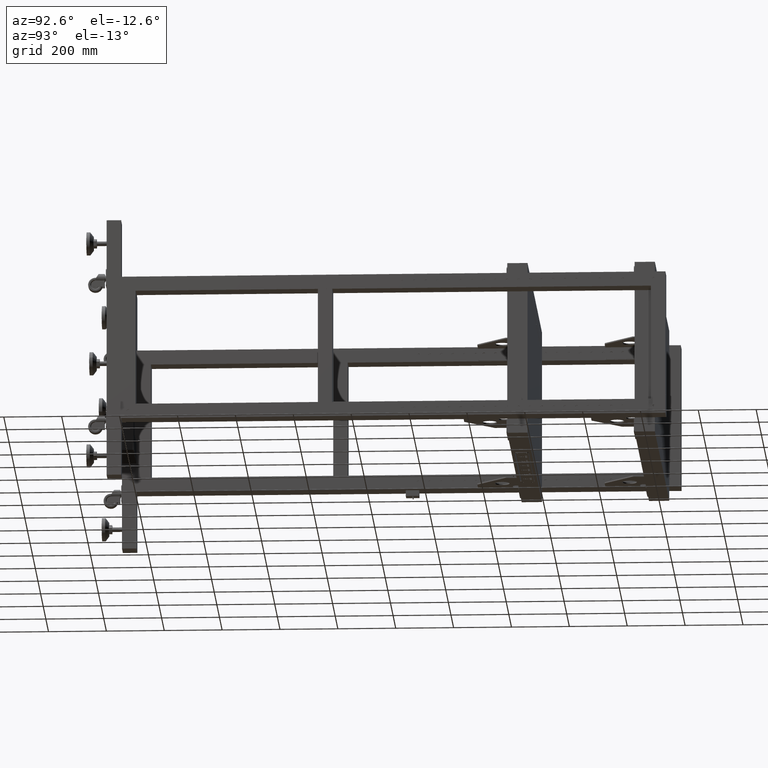
[diagram: clean part render]
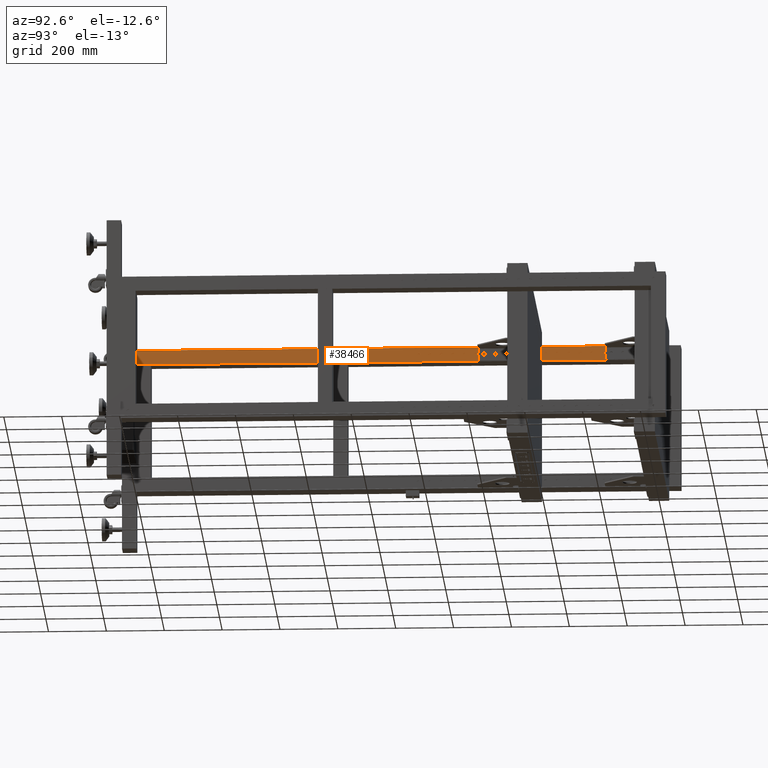
[diagram: same view with one face highlighted and labeled with its STEP entity id]
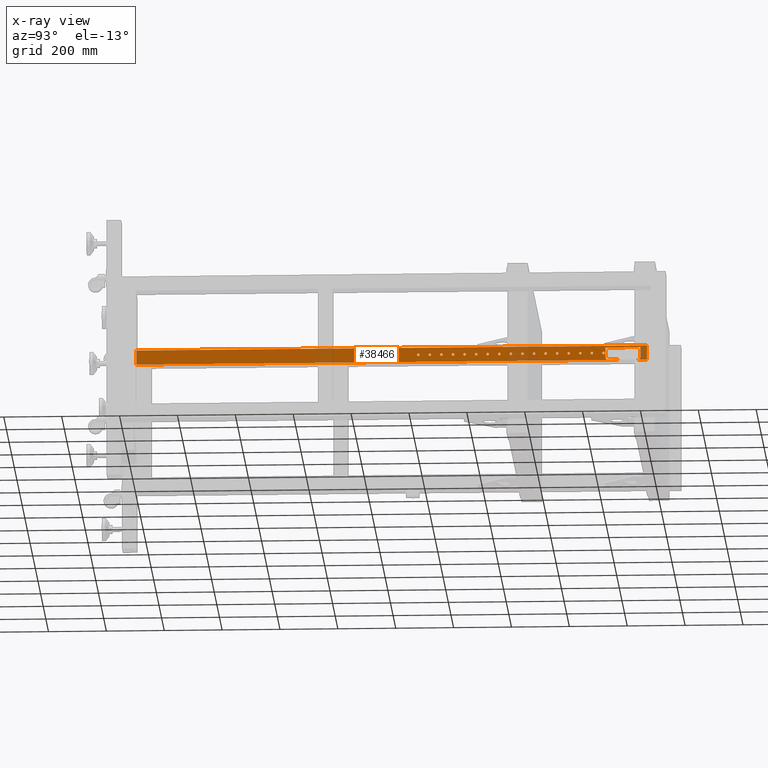
[diagram: x-ray of the same camera — body ghosted, the highlighted face saturated]
A machine part, auxiliary view. The second image highlights one B-rep face of the part: STEP entity #38466.
The next image is the same camera in x-ray: the body ghosted, the highlighted face saturated — about 11% of this face is hidden behind the body in this view.
In plain terms, the highlighted planar face has unit normal (-1, 0, 0).
Its self-contained STEP definition (entity closure, byte-faithful):
#29 = CARTESIAN_POINT ( 'NONE',  ( -1268.172487437185055, 449.4410804020111527, 224.9999999999969020 ) ) ;
#412 = DIRECTION ( 'NONE',  ( -4.498682352102549724E-16, -7.000000000000000150E-15, 1.000000000000000000 ) ) ;
#474 = VERTEX_POINT ( 'NONE', #35393 ) ;
#557 = EDGE_CURVE ( 'NONE', #46273, #58911, #46127, .T. ) ;
#1122 = DIRECTION ( 'NONE',  ( 0.000000000000000000, 1.000000000000000000, 0.000000000000000000 ) ) ;
#1271 = CIRCLE ( 'NONE', #25440, 4.500000000000059508 ) ;
#1441 = CARTESIAN_POINT ( 'NONE',  ( -1268.172487437185055, 289.4410804020110959, 224.9999999999957936 ) ) ;
#1723 = VERTEX_POINT ( 'NONE', #26430 ) ;
#1791 = CIRCLE ( 'NONE', #10579, 4.500000000000059508 ) ;
#1903 = CIRCLE ( 'NONE', #38171, 4.500000000000059508 ) ;
#2025 = LINE ( 'NONE', #49195, #62705 ) ;
#2046 = CARTESIAN_POINT ( 'NONE',  ( -1268.172487437185737, 851.4410804020113801, 200.9999999999986926 ) ) ;
#2087 = VECTOR ( 'NONE', #59550, 1000.000000000000000 ) ;
#2145 = DIRECTION ( 'NONE',  ( 0.000000000000000000, 1.000000000000000000, 0.000000000000000000 ) ) ;
#2530 = DIRECTION ( 'NONE',  ( 1.000000000000000000, 0.000000000000000000, 0.000000000000000000 ) ) ;
#2561 = DIRECTION ( 'NONE',  ( 1.000000000000000000, 0.000000000000000000, 0.000000000000000000 ) ) ;
#2624 = VERTEX_POINT ( 'NONE', #59311 ) ;
#2727 = DIRECTION ( 'NONE',  ( 1.000000000000000000, 0.000000000000000000, 0.000000000000000000 ) ) ;
#3020 = FACE_BOUND ( 'NONE', #5168, .T. ) ;
#3161 = VERTEX_POINT ( 'NONE', #40164 ) ;
#3181 = EDGE_CURVE ( 'NONE', #48906, #7488, #64739, .T. ) ;
#3359 = FACE_BOUND ( 'NONE', #12355, .T. ) ;
#3629 = AXIS2_PLACEMENT_3D ( 'NONE', #42148, #63148, #57986 ) ;
#3705 = DIRECTION ( 'NONE',  ( 1.000000000000000000, 0.000000000000000000, 0.000000000000000000 ) ) ;
#3842 = CARTESIAN_POINT ( 'NONE',  ( -1268.172487437185055, 896.9410804020110390, 243.9899999999990143 ) ) ;
#3983 = CARTESIAN_POINT ( 'NONE',  ( -1268.172487437185055, -844.5589195979888473, 199.9999999999999716 ) ) ;
#4018 = CARTESIAN_POINT ( 'NONE',  ( -1268.172487437185055, 919.4410804020111527, 199.9999999999999716 ) ) ;
#4443 = CIRCLE ( 'NONE', #12138, 4.499999999999948486 ) ;
#4482 = CARTESIAN_POINT ( 'NONE',  ( -1268.172487437185055, 169.4410804020111243, 224.9999999999949409 ) ) ;
#5076 = VERTEX_POINT ( 'NONE', #35598 ) ;
#5168 = EDGE_LOOP ( 'NONE', ( #24730, #62981 ) ) ;
#5228 = EDGE_CURVE ( 'NONE', #54601, #15463, #55320, .T. ) ;
#5247 = DIRECTION ( 'NONE',  ( 1.000000000000000000, 0.000000000000000000, 0.000000000000000000 ) ) ;
#5638 = EDGE_LOOP ( 'NONE', ( #56497, #35612 ) ) ;
#5716 = VERTEX_POINT ( 'NONE', #48889 ) ;
#5869 = DIRECTION ( 'NONE',  ( 0.000000000000000000, 1.000000000000000000, 0.000000000000000000 ) ) ;
#6245 = DIRECTION ( 'NONE',  ( 0.000000000000000000, 1.000000000000000000, 0.000000000000000000 ) ) ;
#6343 = CARTESIAN_POINT ( 'NONE',  ( -1268.172487437185055, 644.9410804020110390, 224.9999999999983231 ) ) ;
#6460 = DIRECTION ( 'NONE',  ( 0.000000000000000000, 1.000000000000000000, 0.000000000000000000 ) ) ;
#6484 = VERTEX_POINT ( 'NONE', #3842 ) ;
#6512 = EDGE_CURVE ( 'NONE', #6484, #15473, #41026, .T. ) ;
#6637 = EDGE_CURVE ( 'NONE', #15463, #54601, #11567, .T. ) ;
#6674 = DIRECTION ( 'NONE',  ( 1.000000000000000000, 0.000000000000000000, 0.000000000000000000 ) ) ;
#6814 = EDGE_CURVE ( 'NONE', #60722, #7488, #49923, .T. ) ;
#6963 = CARTESIAN_POINT ( 'NONE',  ( -1268.172487437185055, 564.9410804020111527, 224.9999999999977547 ) ) ;
#7245 = EDGE_CURVE ( 'NONE', #17857, #14537, #45882, .T. ) ;
#7437 = LINE ( 'NONE', #65273, #21368 ) ;
#7488 = VERTEX_POINT ( 'NONE', #45134 ) ;
#7698 = DIRECTION ( 'NONE',  ( 0.000000000000000000, 1.000000000000000000, 0.000000000000000000 ) ) ;
#7773 = VECTOR ( 'NONE', #61175, 1000.000000000000000 ) ;
#7810 = CARTESIAN_POINT ( 'NONE',  ( -1268.172487437185055, 764.9410804020111527, 224.9999999999991473 ) ) ;
#7952 = AXIS2_PLACEMENT_3D ( 'NONE', #45016, #28829, #49512 ) ;
#8126 = DIRECTION ( 'NONE',  ( 0.000000000000000000, 1.000000000000000000, 0.000000000000000000 ) ) ;
#8182 = FACE_BOUND ( 'NONE', #51613, .T. ) ;
#8520 = FACE_BOUND ( 'NONE', #39785, .T. ) ;
#8637 = CARTESIAN_POINT ( 'NONE',  ( -1268.172487437185055, 404.9410804020111527, 224.9999999999966178 ) ) ;
#8796 = ORIENTED_EDGE ( 'NONE', *, *, #43654, .F. ) ;
#8876 = EDGE_CURVE ( 'NONE', #13182, #46266, #39212, .T. ) ;
#8978 = CARTESIAN_POINT ( 'NONE',  ( -1268.172487437185055, 293.9410804020111527, 224.9999999999957936 ) ) ;
#8995 = EDGE_CURVE ( 'NONE', #3161, #35044, #39187, .T. ) ;
#9128 = DIRECTION ( 'NONE',  ( 0.000000000000000000, 1.000000000000000000, 0.000000000000000000 ) ) ;
#9215 = ORIENTED_EDGE ( 'NONE', *, *, #50017, .T. ) ;
#9364 = AXIS2_PLACEMENT_3D ( 'NONE', #37441, #47095, #53279 ) ;
#9423 = CIRCLE ( 'NONE', #58899, 4.499999999999948486 ) ;
#9612 = VERTEX_POINT ( 'NONE', #53530 ) ;
#10299 = ORIENTED_EDGE ( 'NONE', *, *, #3181, .T. ) ;
#10411 = CIRCLE ( 'NONE', #13702, 4.500000000000003553 ) ;
#10424 = DIRECTION ( 'NONE',  ( 1.000000000000000000, 0.000000000000000000, 0.000000000000000000 ) ) ;
#10579 = AXIS2_PLACEMENT_3D ( 'NONE', #4482, #68162, #52303 ) ;
#10624 = DIRECTION ( 'NONE',  ( 1.000000000000000000, 0.000000000000000000, 0.000000000000000000 ) ) ;
#10630 = VECTOR ( 'NONE', #60250, 1000.000000000000000 ) ;
#10692 = DIRECTION ( 'NONE',  ( 1.000000000000000000, 0.000000000000000000, 0.000000000000000000 ) ) ;
#10730 = EDGE_CURVE ( 'NONE', #53555, #50852, #43581, .T. ) ;
#10927 = EDGE_CURVE ( 'NONE', #14537, #17857, #53495, .T. ) ;
#11567 = CIRCLE ( 'NONE', #47846, 4.499999999999948486 ) ;
#11713 = AXIS2_PLACEMENT_3D ( 'NONE', #41014, #14839, #35832 ) ;
#12138 = AXIS2_PLACEMENT_3D ( 'NONE', #14867, #35862, #36888 ) ;
#12196 = CARTESIAN_POINT ( 'NONE',  ( -1268.172487437185055, 129.4410804020110675, 224.9999999999946851 ) ) ;
#12225 = CIRCLE ( 'NONE', #59531, 4.500000000000059508 ) ;
#12279 = DIRECTION ( 'NONE',  ( 0.000000000000000000, 1.000000000000000000, 0.000000000000000000 ) ) ;
#12355 = EDGE_LOOP ( 'NONE', ( #55398, #40765 ) ) ;
#12412 = ORIENTED_EDGE ( 'NONE', *, *, #53573, .F. ) ;
#12653 = FACE_BOUND ( 'NONE', #51809, .T. ) ;
#12699 = ORIENTED_EDGE ( 'NONE', *, *, #66601, .F. ) ;
#12996 = FACE_BOUND ( 'NONE', #64912, .T. ) ;
#13133 = CARTESIAN_POINT ( 'NONE',  ( -1268.172487437185055, 449.4410804020111527, 224.9999999999969020 ) ) ;
#13182 = VERTEX_POINT ( 'NONE', #18239 ) ;
#13333 = FACE_BOUND ( 'NONE', #41081, .T. ) ;
#13430 = EDGE_LOOP ( 'NONE', ( #19365, #45945 ) ) ;
#13444 = DIRECTION ( 'NONE',  ( 0.000000000000000000, 1.000000000000000000, 0.000000000000000000 ) ) ;
#13683 = CARTESIAN_POINT ( 'NONE',  ( -1268.172487437185055, -844.5589195979888473, 199.9999999999999716 ) ) ;
#13702 = AXIS2_PLACEMENT_3D ( 'NONE', #55299, #56908, #8126 ) ;
#13781 = LINE ( 'NONE', #46157, #47237 ) ;
#13873 = CIRCLE ( 'NONE', #11713, 4.500000000000003553 ) ;
#14110 = VERTEX_POINT ( 'NONE', #31361 ) ;
#14537 = VERTEX_POINT ( 'NONE', #58141 ) ;
#14561 = CARTESIAN_POINT ( 'NONE',  ( -1268.172487437185055, 209.4410804020111527, 224.9999999999952252 ) ) ;
#14839 = DIRECTION ( 'NONE',  ( 1.000000000000000000, 0.000000000000000000, 0.000000000000000000 ) ) ;
#14867 = CARTESIAN_POINT ( 'NONE',  ( -1268.172487437185055, 649.4410804020110390, 224.9999999999983231 ) ) ;
#14882 = CARTESIAN_POINT ( 'NONE',  ( -1268.172487437185055, 484.9410804020110959, 224.9999999999972147 ) ) ;
#14942 = VERTEX_POINT ( 'NONE', #57696 ) ;
#15109 = AXIS2_PLACEMENT_3D ( 'NONE', #62400, #5247, #26224 ) ;
#15251 = CIRCLE ( 'NONE', #33969, 4.500000000000059508 ) ;
#15289 = ORIENTED_EDGE ( 'NONE', *, *, #18565, .F. ) ;
#15392 = EDGE_LOOP ( 'NONE', ( #15289, #65635 ) ) ;
#15463 = VERTEX_POINT ( 'NONE', #33405 ) ;
#15473 = VERTEX_POINT ( 'NONE', #55086 ) ;
#15625 = DIRECTION ( 'NONE',  ( 0.000000000000000000, 1.000000000000000000, 0.000000000000000000 ) ) ;
#15697 = ORIENTED_EDGE ( 'NONE', *, *, #5228, .F. ) ;
#16239 = CIRCLE ( 'NONE', #63526, 4.499999999999948486 ) ;
#17246 = DIRECTION ( 'NONE',  ( 1.000000000000000000, 0.000000000000000000, 0.000000000000000000 ) ) ;
#17790 = CARTESIAN_POINT ( 'NONE',  ( -1268.172487437185055, 613.9410804020111527, 224.9999999999980389 ) ) ;
#17835 = FACE_BOUND ( 'NONE', #24709, .T. ) ;
#17857 = VERTEX_POINT ( 'NONE', #57637 ) ;
#17936 = CARTESIAN_POINT ( 'NONE',  ( -1268.172487437185055, 369.4410804020110959, 224.9999999999963336 ) ) ;
#17939 = AXIS2_PLACEMENT_3D ( 'NONE', #14561, #56563, #30724 ) ;
#18033 = VERTEX_POINT ( 'NONE', #61388 ) ;
#18147 = VERTEX_POINT ( 'NONE', #14882 ) ;
#18213 = CARTESIAN_POINT ( 'NONE',  ( -1268.172487437185055, 729.4410804020110390, 224.9999999999988631 ) ) ;
#18239 = CARTESIAN_POINT ( 'NONE',  ( -1268.172487437185737, 889.9410804020113801, 200.9999999999989484 ) ) ;
#18285 = DIRECTION ( 'NONE',  ( 1.000000000000000000, 0.000000000000000000, 0.000000000000000000 ) ) ;
#18565 = EDGE_CURVE ( 'NONE', #50852, #53555, #39719, .T. ) ;
#18736 = DIRECTION ( 'NONE',  ( 0.000000000000000000, 1.000000000000000000, 0.000000000000000000 ) ) ;
#18858 = PLANE ( 'NONE',  #40930 ) ;
#19365 = ORIENTED_EDGE ( 'NONE', *, *, #22431, .F. ) ;
#20210 = VERTEX_POINT ( 'NONE', #17790 ) ;
#20822 = CARTESIAN_POINT ( 'NONE',  ( -1268.172487437185055, 689.4410804020111527, 224.9999999999985789 ) ) ;
#21067 = VERTEX_POINT ( 'NONE', #56424 ) ;
#21234 = EDGE_CURVE ( 'NONE', #14110, #58265, #27755, .T. ) ;
#21238 = CARTESIAN_POINT ( 'NONE',  ( -1268.172487437185055, 329.4410804020111527, 224.9999999999960778 ) ) ;
#21368 = VECTOR ( 'NONE', #44952, 1000.000000000000000 ) ;
#21391 = CARTESIAN_POINT ( 'NONE',  ( -1268.172487437185055, 453.9410804020110959, 224.9999999999969020 ) ) ;
#22128 = CIRCLE ( 'NONE', #30766, 4.500000000000059508 ) ;
#22254 = AXIS2_PLACEMENT_3D ( 'NONE', #53958, #37116, #6460 ) ;
#22291 = CIRCLE ( 'NONE', #3629, 4.499999999999948486 ) ;
#22313 = ORIENTED_EDGE ( 'NONE', *, *, #6637, .F. ) ;
#22431 = EDGE_CURVE ( 'NONE', #49654, #68010, #16239, .T. ) ;
#22458 = DIRECTION ( 'NONE',  ( 1.000000000000000000, 0.000000000000000000, 0.000000000000000000 ) ) ;
#22865 = CARTESIAN_POINT ( 'NONE',  ( -1268.172487437185055, 284.9410804020111527, 224.9999999999957936 ) ) ;
#22902 = ORIENTED_EDGE ( 'NONE', *, *, #6814, .F. ) ;
#23580 = CARTESIAN_POINT ( 'NONE',  ( -1268.172487437185055, 769.4410804020110390, 224.9999999999991473 ) ) ;
#23650 = CIRCLE ( 'NONE', #37971, 4.499999999999948486 ) ;
#23703 = EDGE_CURVE ( 'NONE', #14942, #36104, #15251, .T. ) ;
#23769 = DIRECTION ( 'NONE',  ( 0.000000000000000000, 0.000000000000000000, 1.000000000000000000 ) ) ;
#24098 = VERTEX_POINT ( 'NONE', #24682 ) ;
#24347 = FACE_BOUND ( 'NONE', #47067, .T. ) ;
#24422 = ORIENTED_EDGE ( 'NONE', *, *, #52807, .F. ) ;
#24428 = DIRECTION ( 'NONE',  ( 0.000000000000000000, 1.000000000000000000, 0.000000000000000000 ) ) ;
#24535 = DIRECTION ( 'NONE',  ( 0.000000000000000000, 1.000000000000000000, 0.000000000000000000 ) ) ;
#24612 = DIRECTION ( 'NONE',  ( 1.000000000000000000, 0.000000000000000000, 0.000000000000000000 ) ) ;
#24682 = CARTESIAN_POINT ( 'NONE',  ( -1268.172487437185055, 333.9410804020110959, 224.9999999999960778 ) ) ;
#24709 = EDGE_LOOP ( 'NONE', ( #58433, #45114 ) ) ;
#24718 = ORIENTED_EDGE ( 'NONE', *, *, #27794, .F. ) ;
#24724 = DIRECTION ( 'NONE',  ( 1.000000000000000000, 0.000000000000000000, 0.000000000000000000 ) ) ;
#24730 = ORIENTED_EDGE ( 'NONE', *, *, #27498, .F. ) ;
#25205 = AXIS2_PLACEMENT_3D ( 'NONE', #62930, #41586, #63263 ) ;
#25399 = CARTESIAN_POINT ( 'NONE',  ( -1268.172487437185055, 649.4410804020110390, 224.9999999999983231 ) ) ;
#25440 = AXIS2_PLACEMENT_3D ( 'NONE', #48682, #2530, #7698 ) ;
#25461 = CARTESIAN_POINT ( 'NONE',  ( -1268.172487437185055, 164.9410804020111527, 224.9999999999949409 ) ) ;
#25495 = CIRCLE ( 'NONE', #62860, 4.500000000000059508 ) ;
#25957 = EDGE_CURVE ( 'NONE', #34529, #60722, #13781, .T. ) ;
#26142 = AXIS2_PLACEMENT_3D ( 'NONE', #53100, #10424, #1122 ) ;
#26224 = DIRECTION ( 'NONE',  ( 0.000000000000000000, 1.000000000000000000, 0.000000000000000000 ) ) ;
#26430 = CARTESIAN_POINT ( 'NONE',  ( -1268.172487437185964, 775.9410804020110390, 243.9899999999981901 ) ) ;
#26579 = EDGE_CURVE ( 'NONE', #9612, #39462, #1791, .T. ) ;
#27498 = EDGE_CURVE ( 'NONE', #58911, #46273, #1903, .T. ) ;
#27682 = VERTEX_POINT ( 'NONE', #8637 ) ;
#27748 = CIRCLE ( 'NONE', #7952, 4.500000000000059508 ) ;
#27755 = CIRCLE ( 'NONE', #22254, 4.500000000000059508 ) ;
#27794 = EDGE_CURVE ( 'NONE', #2624, #20210, #53446, .T. ) ;
#27979 = DIRECTION ( 'NONE',  ( 0.000000000000000000, 1.000000000000000000, 0.000000000000000000 ) ) ;
#28185 = DIRECTION ( 'NONE',  ( 0.000000000000000000, 1.000000000000000000, 0.000000000000000000 ) ) ;
#28342 = ORIENTED_EDGE ( 'NONE', *, *, #60296, .F. ) ;
#28401 = VERTEX_POINT ( 'NONE', #38115 ) ;
#28497 = FACE_BOUND ( 'NONE', #36736, .T. ) ;
#28525 = CARTESIAN_POINT ( 'NONE',  ( -1268.172487437185055, 249.4410804020110675, 224.9999999999955094 ) ) ;
#28648 = DIRECTION ( 'NONE',  ( 1.000000000000000000, 0.000000000000000000, 0.000000000000000000 ) ) ;
#28829 = DIRECTION ( 'NONE',  ( 1.000000000000000000, 0.000000000000000000, 0.000000000000000000 ) ) ;
#28863 = DIRECTION ( 'NONE',  ( 1.000000000000000000, 0.000000000000000000, 0.000000000000000000 ) ) ;
#29131 = EDGE_CURVE ( 'NONE', #474, #62231, #36011, .T. ) ;
#29156 = CARTESIAN_POINT ( 'NONE',  ( -1268.172487437185055, 244.9410804020111243, 224.9999999999955094 ) ) ;
#29162 = FACE_OUTER_BOUND ( 'NONE', #56002, .T. ) ;
#29252 = AXIS2_PLACEMENT_3D ( 'NONE', #29358, #50375, #24535 ) ;
#29358 = CARTESIAN_POINT ( 'NONE',  ( -1268.172487437185055, 529.4410804020111527, 224.9999999999974705 ) ) ;
#29860 = CARTESIAN_POINT ( 'NONE',  ( -1268.172487437185055, 213.9410804020110959, 224.9999999999952252 ) ) ;
#30334 = DIRECTION ( 'NONE',  ( -1.000000000000000000, -2.775557561562891295E-29, -3.491776919586969661E-17 ) ) ;
#30350 = ORIENTED_EDGE ( 'NONE', *, *, #8995, .F. ) ;
#30395 = ORIENTED_EDGE ( 'NONE', *, *, #51522, .F. ) ;
#30647 = ORIENTED_EDGE ( 'NONE', *, *, #34839, .F. ) ;
#30724 = DIRECTION ( 'NONE',  ( 0.000000000000000000, 1.000000000000000000, 0.000000000000000000 ) ) ;
#30766 = AXIS2_PLACEMENT_3D ( 'NONE', #21238, #36054, #57381 ) ;
#31046 = CIRCLE ( 'NONE', #53065, 4.499999999999948486 ) ;
#31207 = ORIENTED_EDGE ( 'NONE', *, *, #64072, .T. ) ;
#31361 = CARTESIAN_POINT ( 'NONE',  ( -1268.172487437185055, 204.9410804020110959, 224.9999999999952252 ) ) ;
#31565 = ORIENTED_EDGE ( 'NONE', *, *, #25957, .F. ) ;
#31790 = ORIENTED_EDGE ( 'NONE', *, *, #38985, .F. ) ;
#31945 = ORIENTED_EDGE ( 'NONE', *, *, #55173, .F. ) ;
#32576 = EDGE_CURVE ( 'NONE', #21067, #42593, #52805, .T. ) ;
#32605 = AXIS2_PLACEMENT_3D ( 'NONE', #32818, #6674, #48678 ) ;
#32818 = CARTESIAN_POINT ( 'NONE',  ( -1268.172487437185055, 249.4410804020110675, 224.9999999999955094 ) ) ;
#32882 = EDGE_CURVE ( 'NONE', #62231, #474, #22291, .T. ) ;
#33027 = AXIS2_PLACEMENT_3D ( 'NONE', #40960, #66458, #24428 ) ;
#33132 = CARTESIAN_POINT ( 'NONE',  ( -1268.172487437185055, 919.4410804020135402, 199.9999999999999716 ) ) ;
#33405 = CARTESIAN_POINT ( 'NONE',  ( -1268.172487437185055, 444.9410804020111527, 224.9999999999969020 ) ) ;
#33969 = AXIS2_PLACEMENT_3D ( 'NONE', #62968, #10624, #61624 ) ;
#34031 = ORIENTED_EDGE ( 'NONE', *, *, #23703, .F. ) ;
#34482 = CARTESIAN_POINT ( 'NONE',  ( -1268.172487437185964, 782.9410804020111527, 207.9999999999982094 ) ) ;
#34529 = VERTEX_POINT ( 'NONE', #52219 ) ;
#34839 = EDGE_CURVE ( 'NONE', #44014, #66800, #23650, .T. ) ;
#34956 = LINE ( 'NONE', #3983, #48363 ) ;
#34993 = CARTESIAN_POINT ( 'NONE',  ( -1268.172487437185055, 569.4410804020111527, 224.9999999999977547 ) ) ;
#35044 = VERTEX_POINT ( 'NONE', #6343 ) ;
#35298 = DIRECTION ( 'NONE',  ( 1.000000000000000000, 0.000000000000000000, 0.000000000000000000 ) ) ;
#35393 = CARTESIAN_POINT ( 'NONE',  ( -1268.172487437185055, 733.9410804020111527, 224.9999999999988631 ) ) ;
#35598 = CARTESIAN_POINT ( 'NONE',  ( -1268.172487437185055, 364.9410804020110959, 224.9999999999963336 ) ) ;
#35612 = ORIENTED_EDGE ( 'NONE', *, *, #10927, .F. ) ;
#35832 = DIRECTION ( 'NONE',  ( 0.000000000000000000, 1.000000000000000000, 0.000000000000000000 ) ) ;
#35862 = DIRECTION ( 'NONE',  ( 1.000000000000000000, 0.000000000000000000, 0.000000000000000000 ) ) ;
#35977 = ORIENTED_EDGE ( 'NONE', *, *, #57016, .F. ) ;
#36011 = CIRCLE ( 'NONE', #53605, 4.499999999999948486 ) ;
#36054 = DIRECTION ( 'NONE',  ( 1.000000000000000000, 0.000000000000000000, 0.000000000000000000 ) ) ;
#36104 = VERTEX_POINT ( 'NONE', #66753 ) ;
#36736 = EDGE_LOOP ( 'NONE', ( #24422, #52524 ) ) ;
#36888 = DIRECTION ( 'NONE',  ( 0.000000000000000000, 1.000000000000000000, 0.000000000000000000 ) ) ;
#37116 = DIRECTION ( 'NONE',  ( 1.000000000000000000, 0.000000000000000000, 0.000000000000000000 ) ) ;
#37169 = CIRCLE ( 'NONE', #26142, 4.499999999999948486 ) ;
#37441 = CARTESIAN_POINT ( 'NONE',  ( -1268.172487437185964, 889.9410804020111527, 207.9999999999989768 ) ) ;
#37502 = AXIS2_PLACEMENT_3D ( 'NONE', #28525, #28863, #28185 ) ;
#37971 = AXIS2_PLACEMENT_3D ( 'NONE', #20822, #35298, #46656 ) ;
#38115 = CARTESIAN_POINT ( 'NONE',  ( -1268.172487437185055, 493.9410804020110959, 224.9999999999971863 ) ) ;
#38149 = ORIENTED_EDGE ( 'NONE', *, *, #21234, .F. ) ;
#38171 = AXIS2_PLACEMENT_3D ( 'NONE', #1441, #18285, #55121 ) ;
#38326 = EDGE_LOOP ( 'NONE', ( #53190, #31790 ) ) ;
#38466 = ADVANCED_FACE ( 'NONE', ( #29162, #13333, #3359, #65020, #8520, #49179, #50181, #66032, #24347, #60521, #28497, #8182, #17835, #3020, #38844, #59845, #45372, #12996, #12653 ), #18858, .F. ) ;
#38467 = CARTESIAN_POINT ( 'NONE',  ( -1268.172487437185055, 769.4410804020110390, 224.9999999999991473 ) ) ;
#38814 = AXIS2_PLACEMENT_3D ( 'NONE', #41136, #24612, #9128 ) ;
#38844 = FACE_BOUND ( 'NONE', #15392, .T. ) ;
#38985 = EDGE_CURVE ( 'NONE', #39462, #9612, #56410, .T. ) ;
#39052 = CIRCLE ( 'NONE', #9364, 7.000000000000006217 ) ;
#39157 = ORIENTED_EDGE ( 'NONE', *, *, #65518, .F. ) ;
#39170 = DIRECTION ( 'NONE',  ( 0.000000000000000000, -1.000000000000000000, 0.000000000000000000 ) ) ;
#39187 = CIRCLE ( 'NONE', #51287, 4.499999999999948486 ) ;
#39212 = LINE ( 'NONE', #2046, #2087 ) ;
#39462 = VERTEX_POINT ( 'NONE', #25461 ) ;
#39630 = DIRECTION ( 'NONE',  ( 1.000000000000000000, 0.000000000000000000, 0.000000000000000000 ) ) ;
#39719 = CIRCLE ( 'NONE', #37502, 4.500000000000059508 ) ;
#39785 = EDGE_LOOP ( 'NONE', ( #30350, #60956 ) ) ;
#39860 = CIRCLE ( 'NONE', #56327, 4.500000000000059508 ) ;
#40164 = CARTESIAN_POINT ( 'NONE',  ( -1268.172487437185055, 653.9410804020111527, 224.9999999999983231 ) ) ;
#40765 = ORIENTED_EDGE ( 'NONE', *, *, #32882, .F. ) ;
#40930 = AXIS2_PLACEMENT_3D ( 'NONE', #13683, #44676, #39170 ) ;
#40960 = CARTESIAN_POINT ( 'NONE',  ( -1268.172487437185055, 409.4410804020110959, 224.9999999999966178 ) ) ;
#41014 = CARTESIAN_POINT ( 'NONE',  ( -1268.172487437185055, 489.4410804020110959, 224.9999999999971863 ) ) ;
#41026 = LINE ( 'NONE', #66515, #41261 ) ;
#41081 = EDGE_LOOP ( 'NONE', ( #46112, #54374 ) ) ;
#41136 = CARTESIAN_POINT ( 'NONE',  ( -1268.172487437185055, 169.4410804020111243, 224.9999999999949409 ) ) ;
#41225 = CARTESIAN_POINT ( 'NONE',  ( -1268.172487437185055, 413.9410804020111527, 224.9999999999966178 ) ) ;
#41261 = VECTOR ( 'NONE', #50345, 1000.000000000000000 ) ;
#41586 = DIRECTION ( 'NONE',  ( 1.000000000000000000, 0.000000000000000000, 0.000000000000000000 ) ) ;
#42148 = CARTESIAN_POINT ( 'NONE',  ( -1268.172487437185055, 729.4410804020110390, 224.9999999999988631 ) ) ;
#42364 = CARTESIAN_POINT ( 'NONE',  ( -1268.172487437185055, 569.4410804020111527, 224.9999999999977547 ) ) ;
#42434 = DIRECTION ( 'NONE',  ( 0.000000000000000000, 1.000000000000000000, 0.000000000000000000 ) ) ;
#42579 = EDGE_CURVE ( 'NONE', #15473, #13182, #39052, .T. ) ;
#42593 = VERTEX_POINT ( 'NONE', #7810 ) ;
#42665 = EDGE_CURVE ( 'NONE', #42593, #21067, #9423, .T. ) ;
#43581 = CIRCLE ( 'NONE', #32605, 4.500000000000059508 ) ;
#43654 = EDGE_CURVE ( 'NONE', #28401, #18147, #13873, .T. ) ;
#44014 = VERTEX_POINT ( 'NONE', #68035 ) ;
#44016 = AXIS2_PLACEMENT_3D ( 'NONE', #23580, #44596, #65606 ) ;
#44083 = CARTESIAN_POINT ( 'NONE',  ( -1268.172487437185055, -844.5589195979888473, 249.9999999999999716 ) ) ;
#44355 = CARTESIAN_POINT ( 'NONE',  ( -1268.172487437185055, -844.5589195979888473, 249.9999999999999716 ) ) ;
#44596 = DIRECTION ( 'NONE',  ( 1.000000000000000000, 0.000000000000000000, 0.000000000000000000 ) ) ;
#44637 = CARTESIAN_POINT ( 'NONE',  ( -1268.172487437185055, 373.9410804020111527, 224.9999999999963336 ) ) ;
#44676 = DIRECTION ( 'NONE',  ( -1.000000000000000000, 0.000000000000000000, 0.000000000000000000 ) ) ;
#44692 = EDGE_CURVE ( 'NONE', #46266, #18033, #52513, .T. ) ;
#44952 = DIRECTION ( 'NONE',  ( 2.800000000000000233E-29, -1.000000000000000000, -7.000000000000000150E-15 ) ) ;
#45016 = CARTESIAN_POINT ( 'NONE',  ( -1268.172487437185055, 369.4410804020110959, 224.9999999999963336 ) ) ;
#45114 = ORIENTED_EDGE ( 'NONE', *, *, #64752, .F. ) ;
#45134 = CARTESIAN_POINT ( 'NONE',  ( -1268.172487437185055, 919.4410804020111527, 249.9999999999999716 ) ) ;
#45372 = FACE_BOUND ( 'NONE', #38326, .T. ) ;
#45484 = CARTESIAN_POINT ( 'NONE',  ( -1268.172487437185055, 609.4410804020111527, 224.9999999999980389 ) ) ;
#45882 = CIRCLE ( 'NONE', #15109, 4.499999999999948486 ) ;
#45945 = ORIENTED_EDGE ( 'NONE', *, *, #52150, .F. ) ;
#46112 = ORIENTED_EDGE ( 'NONE', *, *, #32576, .F. ) ;
#46127 = CIRCLE ( 'NONE', #25205, 4.500000000000059508 ) ;
#46157 = CARTESIAN_POINT ( 'NONE',  ( -1268.172487437185055, -844.5589195979888473, 199.9999999999999716 ) ) ;
#46266 = VERTEX_POINT ( 'NONE', #64543 ) ;
#46273 = VERTEX_POINT ( 'NONE', #22865 ) ;
#46656 = DIRECTION ( 'NONE',  ( 0.000000000000000000, 1.000000000000000000, 0.000000000000000000 ) ) ;
#46861 = AXIS2_PLACEMENT_3D ( 'NONE', #45484, #39630, #13444 ) ;
#46930 = CIRCLE ( 'NONE', #57878, 4.499999999999948486 ) ;
#47067 = EDGE_LOOP ( 'NONE', ( #8796, #48761 ) ) ;
#47071 = VERTEX_POINT ( 'NONE', #44637 ) ;
#47095 = DIRECTION ( 'NONE',  ( -1.000000000000000000, -2.775557561562891295E-29, -3.491776919586969661E-17 ) ) ;
#47237 = VECTOR ( 'NONE', #23769, 1000.000000000000000 ) ;
#47846 = AXIS2_PLACEMENT_3D ( 'NONE', #29, #48223, #52356 ) ;
#48223 = DIRECTION ( 'NONE',  ( 1.000000000000000000, 0.000000000000000000, 0.000000000000000000 ) ) ;
#48363 = VECTOR ( 'NONE', #51815, 1000.000000000000000 ) ;
#48678 = DIRECTION ( 'NONE',  ( 0.000000000000000000, 1.000000000000000000, 0.000000000000000000 ) ) ;
#48682 = CARTESIAN_POINT ( 'NONE',  ( -1268.172487437185055, 409.4410804020110959, 224.9999999999966178 ) ) ;
#48761 = ORIENTED_EDGE ( 'NONE', *, *, #67865, .F. ) ;
#48889 = CARTESIAN_POINT ( 'NONE',  ( -1268.172487437185055, 324.9410804020110959, 224.9999999999960778 ) ) ;
#48906 = VERTEX_POINT ( 'NONE', #33132 ) ;
#49179 = FACE_BOUND ( 'NONE', #66885, .T. ) ;
#49195 = CARTESIAN_POINT ( 'NONE',  ( -1268.172487437185964, 775.9410804020110390, 243.9999999999984368 ) ) ;
#49482 = EDGE_LOOP ( 'NONE', ( #12699, #38149 ) ) ;
#49512 = DIRECTION ( 'NONE',  ( 0.000000000000000000, 1.000000000000000000, 0.000000000000000000 ) ) ;
#49654 = VERTEX_POINT ( 'NONE', #66745 ) ;
#49923 = LINE ( 'NONE', #44083, #10630 ) ;
#49974 = AXIS2_PLACEMENT_3D ( 'NONE', #13133, #22458, #2145 ) ;
#50017 = EDGE_CURVE ( 'NONE', #34529, #48906, #34956, .T. ) ;
#50181 = FACE_BOUND ( 'NONE', #13430, .T. ) ;
#50345 = DIRECTION ( 'NONE',  ( 4.498682352102549724E-16, 7.000000000000000150E-15, -1.000000000000000000 ) ) ;
#50375 = DIRECTION ( 'NONE',  ( 1.000000000000000000, 0.000000000000000000, 0.000000000000000000 ) ) ;
#50534 = EDGE_LOOP ( 'NONE', ( #15697, #22313 ) ) ;
#50847 = DIRECTION ( 'NONE',  ( 0.000000000000000000, 1.000000000000000000, 0.000000000000000000 ) ) ;
#50852 = VERTEX_POINT ( 'NONE', #60982 ) ;
#50969 = CIRCLE ( 'NONE', #17939, 4.500000000000059508 ) ;
#51287 = AXIS2_PLACEMENT_3D ( 'NONE', #25399, #24724, #61249 ) ;
#51522 = EDGE_CURVE ( 'NONE', #36104, #14942, #25495, .T. ) ;
#51613 = EDGE_LOOP ( 'NONE', ( #39157, #12412 ) ) ;
#51711 = CIRCLE ( 'NONE', #33027, 4.500000000000059508 ) ;
#51809 = EDGE_LOOP ( 'NONE', ( #63419, #60298, #31207, #31945, #53252, #56686 ) ) ;
#51815 = DIRECTION ( 'NONE',  ( 0.000000000000000000, 1.000000000000000000, 0.000000000000000000 ) ) ;
#52150 = EDGE_CURVE ( 'NONE', #68010, #49654, #31046, .T. ) ;
#52219 = CARTESIAN_POINT ( 'NONE',  ( -1268.172487437185055, -844.5589195979888473, 199.9999999999999716 ) ) ;
#52303 = DIRECTION ( 'NONE',  ( 0.000000000000000000, 1.000000000000000000, 0.000000000000000000 ) ) ;
#52356 = DIRECTION ( 'NONE',  ( 0.000000000000000000, 1.000000000000000000, 0.000000000000000000 ) ) ;
#52513 = CIRCLE ( 'NONE', #61329, 7.000000000000006217 ) ;
#52524 = ORIENTED_EDGE ( 'NONE', *, *, #62449, .F. ) ;
#52805 = CIRCLE ( 'NONE', #44016, 4.499999999999948486 ) ;
#52807 = EDGE_CURVE ( 'NONE', #64299, #27682, #1271, .T. ) ;
#53065 = AXIS2_PLACEMENT_3D ( 'NONE', #42364, #10692, #5869 ) ;
#53100 = CARTESIAN_POINT ( 'NONE',  ( -1268.172487437185055, 689.4410804020111527, 224.9999999999985789 ) ) ;
#53190 = ORIENTED_EDGE ( 'NONE', *, *, #26579, .F. ) ;
#53252 = ORIENTED_EDGE ( 'NONE', *, *, #6512, .T. ) ;
#53279 = DIRECTION ( 'NONE',  ( 0.000000000000000000, 0.000000000000000000, 1.000000000000000000 ) ) ;
#53446 = CIRCLE ( 'NONE', #46861, 4.499999999999948486 ) ;
#53495 = CIRCLE ( 'NONE', #29252, 4.499999999999948486 ) ;
#53530 = CARTESIAN_POINT ( 'NONE',  ( -1268.172487437185055, 173.9410804020110675, 224.9999999999949409 ) ) ;
#53555 = VERTEX_POINT ( 'NONE', #29156 ) ;
#53573 = EDGE_CURVE ( 'NONE', #5076, #47071, #27748, .T. ) ;
#53605 = AXIS2_PLACEMENT_3D ( 'NONE', #18213, #2727, #42434 ) ;
#53958 = CARTESIAN_POINT ( 'NONE',  ( -1268.172487437185055, 209.4410804020111527, 224.9999999999952252 ) ) ;
#54108 = CARTESIAN_POINT ( 'NONE',  ( -1268.172487437185055, 693.9410804020110390, 224.9999999999985789 ) ) ;
#54374 = ORIENTED_EDGE ( 'NONE', *, *, #42665, .F. ) ;
#54601 = VERTEX_POINT ( 'NONE', #21391 ) ;
#55086 = CARTESIAN_POINT ( 'NONE',  ( -1268.172487437185964, 896.9410804020112664, 207.9999999999990052 ) ) ;
#55121 = DIRECTION ( 'NONE',  ( 0.000000000000000000, 1.000000000000000000, 0.000000000000000000 ) ) ;
#55173 = EDGE_CURVE ( 'NONE', #6484, #1723, #7437, .T. ) ;
#55299 = CARTESIAN_POINT ( 'NONE',  ( -1268.172487437185055, 489.4410804020110959, 224.9999999999971863 ) ) ;
#55320 = CIRCLE ( 'NONE', #49974, 4.499999999999948486 ) ;
#55398 = ORIENTED_EDGE ( 'NONE', *, *, #29131, .F. ) ;
#56002 = EDGE_LOOP ( 'NONE', ( #10299, #22902, #31565, #9215 ) ) ;
#56327 = AXIS2_PLACEMENT_3D ( 'NONE', #17936, #17246, #6245 ) ;
#56410 = CIRCLE ( 'NONE', #38814, 4.500000000000059508 ) ;
#56424 = CARTESIAN_POINT ( 'NONE',  ( -1268.172487437185055, 773.9410804020111527, 224.9999999999991473 ) ) ;
#56497 = ORIENTED_EDGE ( 'NONE', *, *, #7245, .F. ) ;
#56563 = DIRECTION ( 'NONE',  ( 1.000000000000000000, 0.000000000000000000, 0.000000000000000000 ) ) ;
#56686 = ORIENTED_EDGE ( 'NONE', *, *, #42579, .T. ) ;
#56908 = DIRECTION ( 'NONE',  ( 1.000000000000000000, 0.000000000000000000, 0.000000000000000000 ) ) ;
#57016 = EDGE_CURVE ( 'NONE', #20210, #2624, #46930, .T. ) ;
#57381 = DIRECTION ( 'NONE',  ( 0.000000000000000000, 1.000000000000000000, 0.000000000000000000 ) ) ;
#57637 = CARTESIAN_POINT ( 'NONE',  ( -1268.172487437185055, 533.9410804020110390, 224.9999999999974705 ) ) ;
#57696 = CARTESIAN_POINT ( 'NONE',  ( -1268.172487437185055, 124.9410804020111243, 224.9999999999946851 ) ) ;
#57878 = AXIS2_PLACEMENT_3D ( 'NONE', #63141, #3705, #15625 ) ;
#57986 = DIRECTION ( 'NONE',  ( 0.000000000000000000, 1.000000000000000000, 0.000000000000000000 ) ) ;
#58141 = CARTESIAN_POINT ( 'NONE',  ( -1268.172487437185055, 524.9410804020111527, 224.9999999999974705 ) ) ;
#58229 = CARTESIAN_POINT ( 'NONE',  ( -1268.172487437185055, 724.9410804020111527, 224.9999999999988631 ) ) ;
#58265 = VERTEX_POINT ( 'NONE', #29860 ) ;
#58433 = ORIENTED_EDGE ( 'NONE', *, *, #63036, .F. ) ;
#58899 = AXIS2_PLACEMENT_3D ( 'NONE', #38467, #59463, #12279 ) ;
#58911 = VERTEX_POINT ( 'NONE', #8978 ) ;
#59311 = CARTESIAN_POINT ( 'NONE',  ( -1268.172487437185055, 604.9410804020111527, 224.9999999999980389 ) ) ;
#59463 = DIRECTION ( 'NONE',  ( 1.000000000000000000, 0.000000000000000000, 0.000000000000000000 ) ) ;
#59531 = AXIS2_PLACEMENT_3D ( 'NONE', #65168, #28648, #27979 ) ;
#59550 = DIRECTION ( 'NONE',  ( 2.800000000000000233E-29, -1.000000000000000000, -7.000000000000000150E-15 ) ) ;
#59845 = FACE_BOUND ( 'NONE', #49482, .T. ) ;
#60250 = DIRECTION ( 'NONE',  ( 0.000000000000000000, 1.000000000000000000, 0.000000000000000000 ) ) ;
#60296 = EDGE_CURVE ( 'NONE', #66800, #44014, #37169, .T. ) ;
#60298 = ORIENTED_EDGE ( 'NONE', *, *, #44692, .T. ) ;
#60521 = FACE_BOUND ( 'NONE', #50534, .T. ) ;
#60722 = VERTEX_POINT ( 'NONE', #44355 ) ;
#60956 = ORIENTED_EDGE ( 'NONE', *, *, #62128, .F. ) ;
#60982 = CARTESIAN_POINT ( 'NONE',  ( -1268.172487437185055, 253.9410804020111243, 224.9999999999955094 ) ) ;
#61006 = DIRECTION ( 'NONE',  ( 0.000000000000000000, 0.000000000000000000, 1.000000000000000000 ) ) ;
#61175 = DIRECTION ( 'NONE',  ( 0.000000000000000000, 0.000000000000000000, 1.000000000000000000 ) ) ;
#61249 = DIRECTION ( 'NONE',  ( 0.000000000000000000, 1.000000000000000000, 0.000000000000000000 ) ) ;
#61329 = AXIS2_PLACEMENT_3D ( 'NONE', #34482, #30334, #61006 ) ;
#61388 = CARTESIAN_POINT ( 'NONE',  ( -1268.172487437185964, 775.9410804020112664, 207.9999999999981526 ) ) ;
#61524 = DIRECTION ( 'NONE',  ( 1.000000000000000000, 0.000000000000000000, 0.000000000000000000 ) ) ;
#61624 = DIRECTION ( 'NONE',  ( 0.000000000000000000, 1.000000000000000000, 0.000000000000000000 ) ) ;
#62128 = EDGE_CURVE ( 'NONE', #35044, #3161, #4443, .T. ) ;
#62231 = VERTEX_POINT ( 'NONE', #58229 ) ;
#62400 = CARTESIAN_POINT ( 'NONE',  ( -1268.172487437185055, 529.4410804020111527, 224.9999999999974705 ) ) ;
#62449 = EDGE_CURVE ( 'NONE', #27682, #64299, #51711, .T. ) ;
#62705 = VECTOR ( 'NONE', #412, 1000.000000000000000 ) ;
#62715 = EDGE_LOOP ( 'NONE', ( #28342, #30647 ) ) ;
#62860 = AXIS2_PLACEMENT_3D ( 'NONE', #12196, #2561, #18736 ) ;
#62930 = CARTESIAN_POINT ( 'NONE',  ( -1268.172487437185055, 289.4410804020110959, 224.9999999999957936 ) ) ;
#62968 = CARTESIAN_POINT ( 'NONE',  ( -1268.172487437185055, 129.4410804020110675, 224.9999999999946851 ) ) ;
#62981 = ORIENTED_EDGE ( 'NONE', *, *, #557, .F. ) ;
#63036 = EDGE_CURVE ( 'NONE', #24098, #5716, #22128, .T. ) ;
#63141 = CARTESIAN_POINT ( 'NONE',  ( -1268.172487437185055, 609.4410804020111527, 224.9999999999980389 ) ) ;
#63148 = DIRECTION ( 'NONE',  ( 1.000000000000000000, 0.000000000000000000, 0.000000000000000000 ) ) ;
#63263 = DIRECTION ( 'NONE',  ( 0.000000000000000000, 1.000000000000000000, 0.000000000000000000 ) ) ;
#63419 = ORIENTED_EDGE ( 'NONE', *, *, #8876, .T. ) ;
#63526 = AXIS2_PLACEMENT_3D ( 'NONE', #34993, #61524, #50847 ) ;
#64072 = EDGE_CURVE ( 'NONE', #18033, #1723, #2025, .T. ) ;
#64299 = VERTEX_POINT ( 'NONE', #41225 ) ;
#64543 = CARTESIAN_POINT ( 'NONE',  ( -1268.172487437185737, 782.9410804020113801, 200.9999999999982094 ) ) ;
#64739 = LINE ( 'NONE', #4018, #7773 ) ;
#64752 = EDGE_CURVE ( 'NONE', #5716, #24098, #12225, .T. ) ;
#64912 = EDGE_LOOP ( 'NONE', ( #30395, #34031 ) ) ;
#65020 = FACE_BOUND ( 'NONE', #62715, .T. ) ;
#65168 = CARTESIAN_POINT ( 'NONE',  ( -1268.172487437185055, 329.4410804020111527, 224.9999999999960778 ) ) ;
#65273 = CARTESIAN_POINT ( 'NONE',  ( -1268.172487437185964, 775.9410804020110390, 243.9899999999981901 ) ) ;
#65518 = EDGE_CURVE ( 'NONE', #47071, #5076, #39860, .T. ) ;
#65606 = DIRECTION ( 'NONE',  ( 0.000000000000000000, 1.000000000000000000, 0.000000000000000000 ) ) ;
#65635 = ORIENTED_EDGE ( 'NONE', *, *, #10730, .F. ) ;
#66032 = FACE_BOUND ( 'NONE', #5638, .T. ) ;
#66458 = DIRECTION ( 'NONE',  ( 1.000000000000000000, 0.000000000000000000, 0.000000000000000000 ) ) ;
#66515 = CARTESIAN_POINT ( 'NONE',  ( -1268.172487437185964, 896.9410804020110390, 243.9999999999992895 ) ) ;
#66601 = EDGE_CURVE ( 'NONE', #58265, #14110, #50969, .T. ) ;
#66745 = CARTESIAN_POINT ( 'NONE',  ( -1268.172487437185055, 573.9410804020110390, 224.9999999999977547 ) ) ;
#66753 = CARTESIAN_POINT ( 'NONE',  ( -1268.172487437185055, 133.9410804020111243, 224.9999999999946851 ) ) ;
#66800 = VERTEX_POINT ( 'NONE', #54108 ) ;
#66885 = EDGE_LOOP ( 'NONE', ( #35977, #24718 ) ) ;
#67865 = EDGE_CURVE ( 'NONE', #18147, #28401, #10411, .T. ) ;
#68010 = VERTEX_POINT ( 'NONE', #6963 ) ;
#68035 = CARTESIAN_POINT ( 'NONE',  ( -1268.172487437185055, 684.9410804020110390, 224.9999999999985789 ) ) ;
#68162 = DIRECTION ( 'NONE',  ( 1.000000000000000000, 0.000000000000000000, 0.000000000000000000 ) ) ;